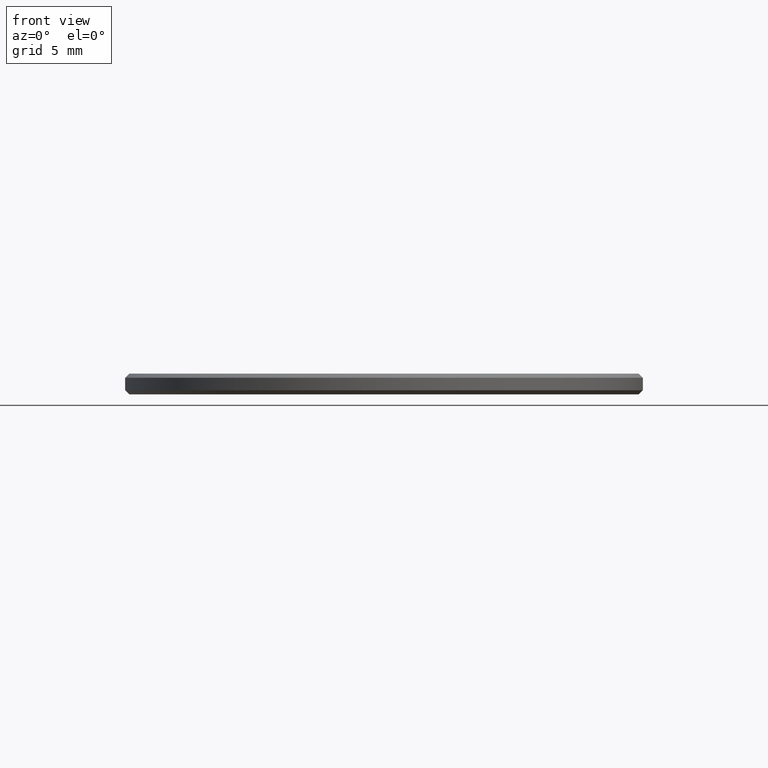
[diagram: clean part render]
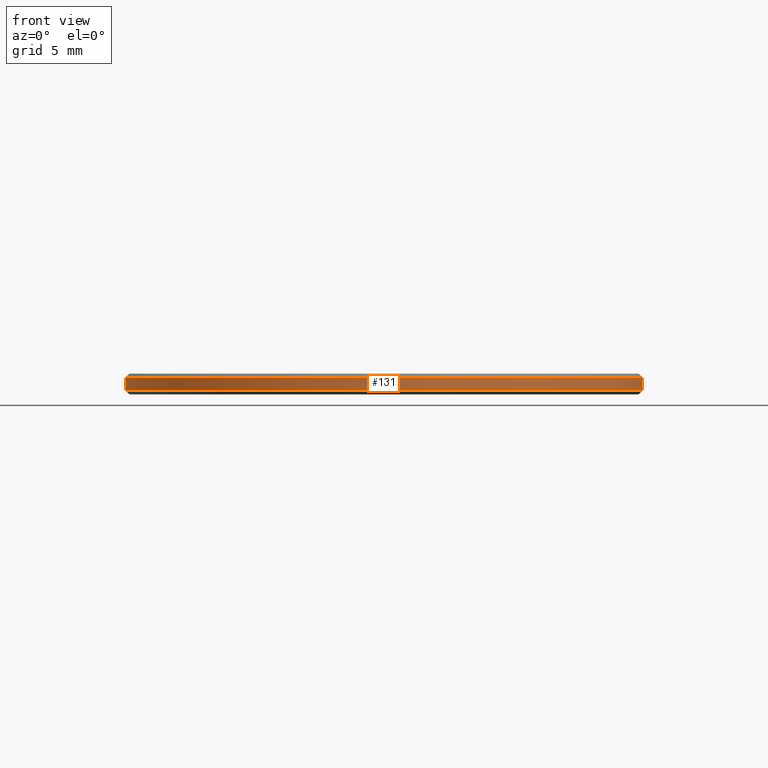
[diagram: same view with one face highlighted and labeled with its STEP entity id]
A machine part, front view. The second image highlights one B-rep face of the part: STEP entity #131.
In plain terms, the highlighted cylindrical surface (partial cylindrical patch) has radius 12.5 mm, axis along (-0, -0, -1).
Its self-contained STEP definition (entity closure, byte-faithful):
#16 = LINE ( 'NONE', #51, #30 ) ;
#17 = DIRECTION ( 'NONE',  ( 0.000000000000000000, 0.000000000000000000, -1.000000000000000000 ) ) ;
#18 = DIRECTION ( 'NONE',  ( -0.000000000000000000, -0.000000000000000000, -1.000000000000000000 ) ) ;
#21 = CARTESIAN_POINT ( 'NONE',  ( 0.000000000000000000, 0.000000000000000000, 0.1999999999999987899 ) ) ;
#30 = VECTOR ( 'NONE', #162, 1000.000000000000000 ) ;
#36 = DIRECTION ( 'NONE',  ( 1.000000000000000000, 0.000000000000000000, 0.000000000000000000 ) ) ;
#38 = CARTESIAN_POINT ( 'NONE',  ( 12.50000000000000000, 1.530808498934191521E-15, 0.8000000000000029310 ) ) ;
#45 = VERTEX_POINT ( 'NONE', #126 ) ;
#51 = CARTESIAN_POINT ( 'NONE',  ( -12.50000000000000000, 0.000000000000000000, 1.000000000000000000 ) ) ;
#52 = CARTESIAN_POINT ( 'NONE',  ( -12.50000000000000000, 0.000000000000000000, 0.1999999999999987899 ) ) ;
#62 = ORIENTED_EDGE ( 'NONE', *, *, #185, .T. ) ;
#66 = EDGE_CURVE ( 'NONE', #193, #45, #86, .T. ) ;
#73 = AXIS2_PLACEMENT_3D ( 'NONE', #195, #17, #36 ) ;
#74 = CARTESIAN_POINT ( 'NONE',  ( 0.000000000000000000, 0.000000000000000000, 1.000000000000000000 ) ) ;
#76 = LINE ( 'NONE', #97, #115 ) ;
#77 = DIRECTION ( 'NONE',  ( -0.000000000000000000, -0.000000000000000000, 1.000000000000000000 ) ) ;
#79 = CIRCLE ( 'NONE', #215, 12.50000000000000000 ) ;
#86 = CIRCLE ( 'NONE', #73, 12.50000000000000000 ) ;
#97 = CARTESIAN_POINT ( 'NONE',  ( 12.50000000000000000, 1.530808498934191521E-15, 1.000000000000000000 ) ) ;
#100 = CARTESIAN_POINT ( 'NONE',  ( 12.50000000000000000, 1.530808498934191521E-15, 0.1999999999999987899 ) ) ;
#110 = FACE_OUTER_BOUND ( 'NONE', #157, .T. ) ;
#115 = VECTOR ( 'NONE', #207, 1000.000000000000000 ) ;
#116 = VERTEX_POINT ( 'NONE', #52 ) ;
#123 = EDGE_CURVE ( 'NONE', #45, #116, #16, .T. ) ;
#124 = CYLINDRICAL_SURFACE ( 'NONE', #125, 12.50000000000000000 ) ;
#125 = AXIS2_PLACEMENT_3D ( 'NONE', #74, #18, #233 ) ;
#126 = CARTESIAN_POINT ( 'NONE',  ( -12.50000000000000000, 0.000000000000000000, 0.8000000000000029310 ) ) ;
#131 = ADVANCED_FACE ( 'NONE', ( #110 ), #124, .T. ) ;
#157 = EDGE_LOOP ( 'NONE', ( #192, #172, #231, #62 ) ) ;
#162 = DIRECTION ( 'NONE',  ( -0.000000000000000000, -0.000000000000000000, -1.000000000000000000 ) ) ;
#172 = ORIENTED_EDGE ( 'NONE', *, *, #66, .T. ) ;
#184 = DIRECTION ( 'NONE',  ( 1.000000000000000000, 0.000000000000000000, 0.000000000000000000 ) ) ;
#185 = EDGE_CURVE ( 'NONE', #116, #189, #79, .T. ) ;
#189 = VERTEX_POINT ( 'NONE', #100 ) ;
#192 = ORIENTED_EDGE ( 'NONE', *, *, #211, .F. ) ;
#193 = VERTEX_POINT ( 'NONE', #38 ) ;
#195 = CARTESIAN_POINT ( 'NONE',  ( 0.000000000000000000, 0.000000000000000000, 0.8000000000000029310 ) ) ;
#207 = DIRECTION ( 'NONE',  ( -0.000000000000000000, -0.000000000000000000, -1.000000000000000000 ) ) ;
#211 = EDGE_CURVE ( 'NONE', #193, #189, #76, .T. ) ;
#215 = AXIS2_PLACEMENT_3D ( 'NONE', #21, #77, #184 ) ;
#231 = ORIENTED_EDGE ( 'NONE', *, *, #123, .T. ) ;
#233 = DIRECTION ( 'NONE',  ( -1.000000000000000000, 0.000000000000000000, 0.000000000000000000 ) ) ;